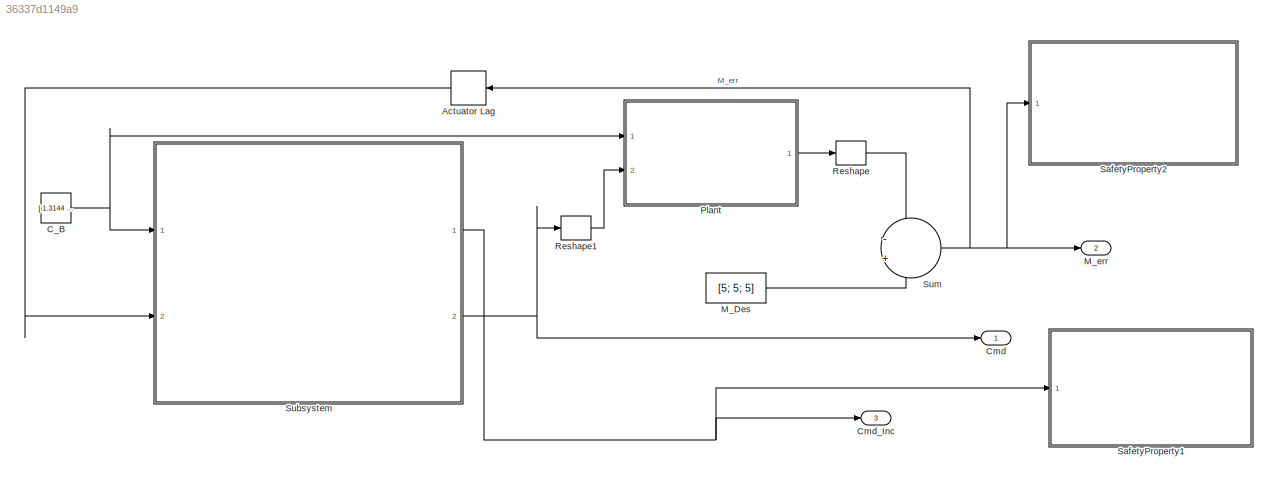
MODEL slx_36337d1149a9
KIND model
CONFIG AbsTol = auto
CONFIG FixedStep = auto
CONFIG MaxStep = auto
CONFIG MinStep = auto
CONFIG RelTol = 1e-3
CONFIG SampleTimeConstraint = Unconstrained
CONFIG Solver = ode45
CONFIG SolverMode = Auto
CONFIG SolverName = ode45
CONFIG StartTime = 0.0
CONFIG StopTime = 10.0
BLOCK [Delay]  Actuator Lag
  DelayLength = 1
  InitialCondition = [0;0;0]'
  InputPortMap = u0
  Ports = [1, 1]
  SampleTime = 0.1
BLOCK [Constant] C_B
  Value = [ 1.3144   -1.3144         0    0.5155\n;         0         0   -3.9998         0;\n    0.2782   -0.2782         0   -1.6581]
  VectorParams1D = off
BLOCK [Outport] Cmd
  IconDisplay = Port number
BLOCK [Outport] Cmd_Inc
  IconDisplay = Port number
  Port = 3
BLOCK [Constant] M_Des
  Value = [5; 5; 5]
BLOCK [Outport] M_err
  IconDisplay = Port number
  Port = 2
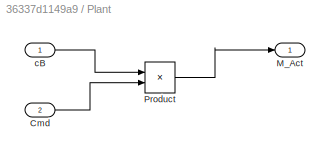
BLOCK [SubSystem] Plant
  Ports = [2, 1]
  RequestExecContextInheritance = off
BLOCK [Inport] Plant/Cmd
  IconDisplay = Port number
  Port = 2
BLOCK [Outport] Plant/M_Act
  IconDisplay = Port number
BLOCK [Product] Plant/Product
  InputSameDT = off
  Multiplication = Matrix(*)
  OutDataTypeStr = Inherit: Inherit via internal rule
  Ports = [2, 1]
  RndMeth = Floor
  SaturateOnIntegerOverflow = off
BLOCK [Inport] Plant/cB
  IconDisplay = Port number
BLOCK [Reshape] Reshape
  Ports = [1, 1]
BLOCK [Reshape] Reshape1
  OutputDimensionality = Customize
  OutputDimensions = [4,1]
  Ports = [1, 1]
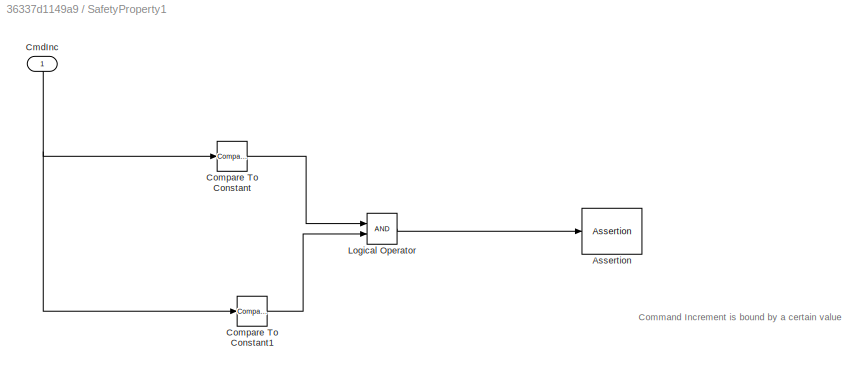
BLOCK [SubSystem] SafetyProperty1
  Ports = [1]
  RequestExecContextInheritance = off
  TreatAsAtomicUnit = on
BLOCK [Assertion] SafetyProperty1/Assertion
BLOCK [Inport] SafetyProperty1/CmdInc 
  IconDisplay = Port number
BLOCK [Reference] SafetyProperty1/Compare To Constant  REF=simulink/Logic and Bit
Operations/Compare
To Constant
  OutDataTypeStr = boolean
  Ports = [1, 1]
  SourceBlock = simulink/Logic and Bit\nOperations/Compare\nTo Constant
  SourceType = Compare To Constant
  ZeroCross = on
  const = -0.1
  relop = >=
BLOCK [Reference] SafetyProperty1/Compare To Constant1  REF=simulink/Logic and Bit
Operations/Compare
To Constant
  OutDataTypeStr = boolean
  Ports = [1, 1]
  SourceBlock = simulink/Logic and Bit\nOperations/Compare\nTo Constant
  SourceType = Compare To Constant
  ZeroCross = on
  const = 0.1
  relop = <=
BLOCK [Logic] SafetyProperty1/Logical Operator
  AllPortsSameDT = off
  OutDataTypeStr = boolean
  Ports = [2, 1]
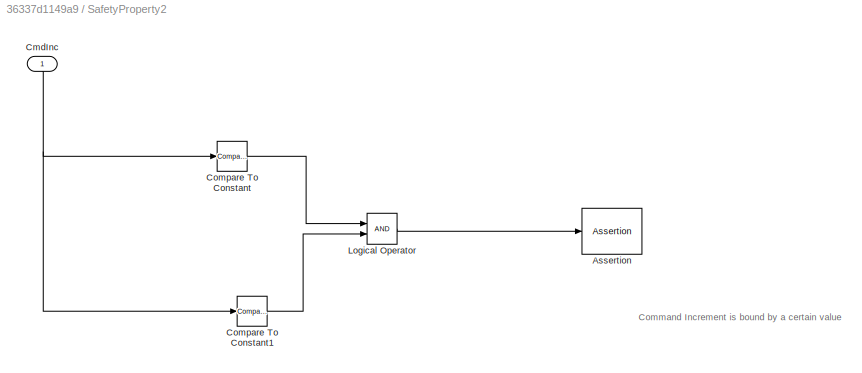
BLOCK [SubSystem] SafetyProperty2
  Ports = [1]
  RequestExecContextInheritance = off
  TreatAsAtomicUnit = on
BLOCK [Assertion] SafetyProperty2/Assertion
BLOCK [Inport] SafetyProperty2/CmdInc 
  IconDisplay = Port number
BLOCK [Reference] SafetyProperty2/Compare To Constant  REF=simulink/Logic and Bit
Operations/Compare
To Constant
  OutDataTypeStr = boolean
  Ports = [1, 1]
  SourceBlock = simulink/Logic and Bit\nOperations/Compare\nTo Constant
  SourceType = Compare To Constant
  ZeroCross = on
  const = -0.1
  relop = >=
BLOCK [Reference] SafetyProperty2/Compare To Constant1  REF=simulink/Logic and Bit
Operations/Compare
To Constant
  OutDataTypeStr = boolean
  Ports = [1, 1]
  SourceBlock = simulink/Logic and Bit\nOperations/Compare\nTo Constant
  SourceType = Compare To Constant
  ZeroCross = on
  const = 0.1
  relop = <=
BLOCK [Logic] SafetyProperty2/Logical Operator
  AllPortsSameDT = off
  OutDataTypeStr = boolean
  Ports = [2, 1]
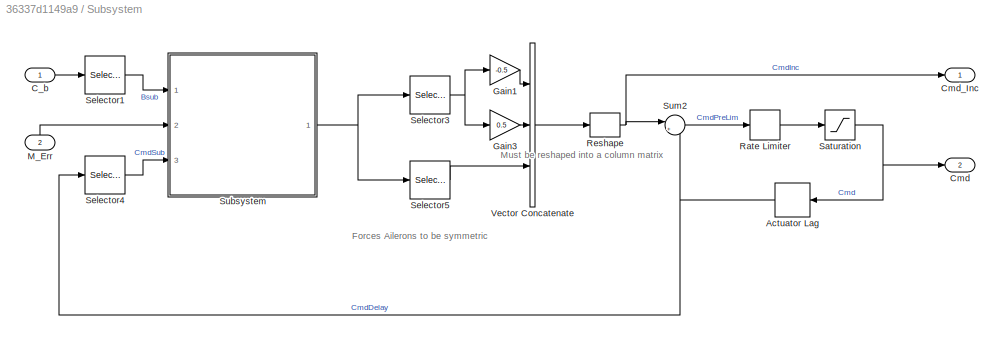
BLOCK [SubSystem] Subsystem
  Ports = [2, 2]
  RequestExecContextInheritance = off
BLOCK [Delay] Subsystem/ Actuator Lag
  DelayLength = 1
  InitialCondition = [0 0 0 0]'
  InputPortMap = u0
  Ports = [1, 1]
BLOCK [Inport] Subsystem/C_b
  IconDisplay = Port number
BLOCK [Outport] Subsystem/Cmd
  IconDisplay = Port number
  Port = 2
BLOCK [Outport] Subsystem/Cmd_Inc
  IconDisplay = Port number
BLOCK [Gain] Subsystem/Gain1
  Gain = -0.5
  OutDataTypeStr = Inherit: Inherit via internal rule
  ParamDataTypeStr = Inherit: Inherit via internal rule
  SaturateOnIntegerOverflow = off
BLOCK [Gain] Subsystem/Gain3
  Gain = 0.5
  OutDataTypeStr = Inherit: Inherit via internal rule
  ParamDataTypeStr = Inherit: Inherit via internal rule
  SaturateOnIntegerOverflow = off
BLOCK [Inport] Subsystem/M_Err
  IconDisplay = Port number
  Port = 2
BLOCK [RateLimiter] Subsystem/Rate Limiter
  FallingSlewLimit = -0.1
  RisingSlewLimit = 0.1
  SampleTimeMode = inherited
BLOCK [Reshape] Subsystem/Reshape
  OutputDimensionality = Column vector (2-D)
  Ports = [1, 1]
BLOCK [Saturate] Subsystem/Saturation
  InputPortMap = u0
  LowerLimit = -30
  Ports = [1, 1]
  UpperLimit = 30
BLOCK [Selector] Subsystem/Selector1
  IndexOptions = Select all,Index vector (dialog)
  Indices = [1 3],[2:4]
  InputPortWidth = 3
  NumberOfDimensions = 2
  OutputSizes = 1,1
  Ports = [1, 1]
BLOCK [Selector] Subsystem/Selector3
  InputPortWidth = 3
  Ports = [1, 1]
BLOCK [Selector] Subsystem/Selector4
  Indices = 2:4
  InputPortWidth = 4
  Ports = [1, 1]
BLOCK [Selector] Subsystem/Selector5
  Indices = 2:3
  InputPortWidth = 3
  Ports = [1, 1]
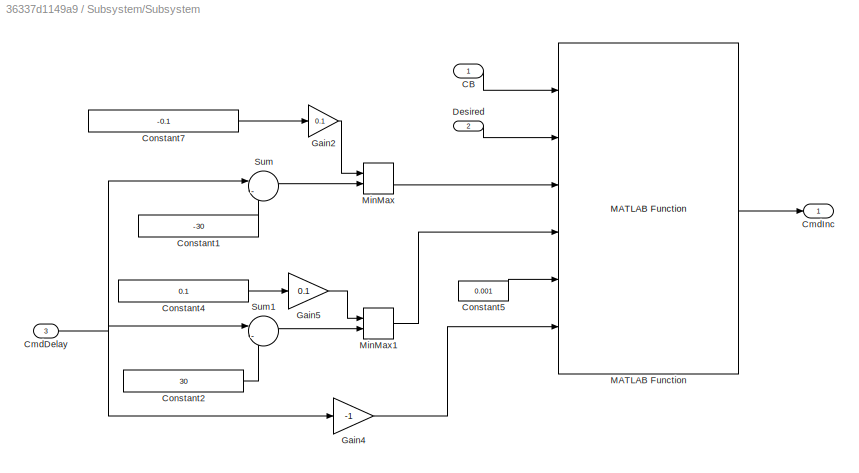
BLOCK [SubSystem] Subsystem/Subsystem
  Ports = [3, 1]
  RequestExecContextInheritance = off
BLOCK [Inport] Subsystem/Subsystem/CB
  IconDisplay = Port number
BLOCK [Inport] Subsystem/Subsystem/CmdDelay
  IconDisplay = Port number
  Port = 3
BLOCK [Outport] Subsystem/Subsystem/CmdInc
  IconDisplay = Port number
BLOCK [Constant] Subsystem/Subsystem/Constant1
  Value = -30
BLOCK [Constant] Subsystem/Subsystem/Constant2
  Value = 30
BLOCK [Constant] Subsystem/Subsystem/Constant4
  Value = 0.1
BLOCK [Constant] Subsystem/Subsystem/Constant5
  Value = 0.001
BLOCK [Constant] Subsystem/Subsystem/Constant7
  Value = -0.1
BLOCK [Inport] Subsystem/Subsystem/Desired
  IconDisplay = Port number
  Port = 2
BLOCK [Gain] Subsystem/Subsystem/Gain2
  Gain = 0.1
  OutDataTypeStr = Inherit: Inherit via internal rule
  ParamDataTypeStr = Inherit: Inherit via internal rule
  SaturateOnIntegerOverflow = off
BLOCK [Gain] Subsystem/Subsystem/Gain4
  Gain = -1
  OutDataTypeStr = Inherit: Inherit via internal rule
  ParamDataTypeStr = Inherit: Inherit via internal rule
  SaturateOnIntegerOverflow = off
BLOCK [Gain] Subsystem/Subsystem/Gain5
  Gain = 0.1
  OutDataTypeStr = Inherit: Inherit via internal rule
  ParamDataTypeStr = Inherit: Inherit via internal rule
  SaturateOnIntegerOverflow = off
BLOCK [Reference] Subsystem/Subsystem/MATLAB Function  REF=ControlAllocator/Control Allocator/L1_OCA/MATLAB Function
  Ports = [6, 1]
  SourceBlock = ControlAllocator/Control Allocator/L1_OCA/MATLAB Function
  SourceType = SubSystem
BLOCK [MinMax] Subsystem/Subsystem/MinMax
  Function = max
  InputSameDT = off
  Inputs = 2
  Ports = [2, 1]
  SaturateOnIntegerOverflow = off
BLOCK [MinMax] Subsystem/Subsystem/MinMax1
  InputSameDT = off
  Inputs = 2
  Ports = [2, 1]
  SaturateOnIntegerOverflow = off
BLOCK [Sum] Subsystem/Subsystem/Sum
  IconShape = round
  InputSameDT = off
  Inputs = |-+
  OutDataTypeStr = Inherit: Inherit via internal rule
  Ports = [2, 1]
  SaturateOnIntegerOverflow = off
BLOCK [Sum] Subsystem/Subsystem/Sum1
  IconShape = round
  InputSameDT = off
  Inputs = |-+
  OutDataTypeStr = Inherit: Inherit via internal rule
  Ports = [2, 1]
  SaturateOnIntegerOverflow = off
BLOCK [Sum] Subsystem/Sum2
  IconShape = round
  InputSameDT = off
  Inputs = |++
  OutDataTypeStr = Inherit: Inherit via internal rule
  Ports = [2, 1]
  SaturateOnIntegerOverflow = off
BLOCK [Concatenate] Subsystem/Vector Concatenate
  NumInputs = 3
  Ports = [3, 1]
BLOCK [Sum] Sum
  IconShape = round
  InputSameDT = off
  Inputs = -+
  OutDataTypeStr = Inherit: Inherit via internal rule
  Ports = [2, 1]
  SaturateOnIntegerOverflow = off
ANNOTATION SafetyProperty1: Command Increment is bound by a certain value
ANNOTATION SafetyProperty2: Command Increment is bound by a certain value
ANNOTATION Subsystem: Forces Ailerons to be symmetric
ANNOTATION Subsystem: Must be reshaped into a column matrix
LINE  Actuator Lag:1 -> Subsystem:2
NET C_B:1 -> Plant:1, Subsystem:1
LINE M_Des:1 -> Sum:2
LINE Plant/Cmd:1 -> Plant/Product:2
LINE Plant/Product:1 -> Plant/M_Act:1
LINE Plant/cB:1 -> Plant/Product:1
LINE Plant:1 -> Reshape:1
LINE Reshape1:1 -> Plant:2
LINE Reshape:1 -> Sum:1
NET SafetyProperty1/CmdInc :1 -> SafetyProperty1/Compare To Constant1:1, SafetyProperty1/Compare To Constant:1
LINE SafetyProperty1/Compare To Constant1:1 -> SafetyProperty1/Logical Operator:2
LINE SafetyProperty1/Compare To Constant:1 -> SafetyProperty1/Logical Operator:1
LINE SafetyProperty1/Logical Operator:1 -> SafetyProperty1/Assertion:1
NET SafetyProperty2/CmdInc :1 -> SafetyProperty2/Compare To Constant1:1, SafetyProperty2/Compare To Constant:1
LINE SafetyProperty2/Compare To Constant1:1 -> SafetyProperty2/Logical Operator:2
LINE SafetyProperty2/Compare To Constant:1 -> SafetyProperty2/Logical Operator:1
LINE SafetyProperty2/Logical Operator:1 -> SafetyProperty2/Assertion:1
NET Subsystem/ Actuator Lag:1 -> Subsystem/Selector4:1, Subsystem/Sum2:2
LINE Subsystem/C_b:1 -> Subsystem/Selector1:1
LINE Subsystem/Gain1:1 -> Subsystem/Vector Concatenate:1
LINE Subsystem/Gain3:1 -> Subsystem/Vector Concatenate:2
LINE Subsystem/M_Err:1 -> Subsystem/Subsystem:2
LINE Subsystem/Rate Limiter:1 -> Subsystem/Saturation:1
NET Subsystem/Reshape:1 -> Subsystem/Cmd_Inc:1, Subsystem/Sum2:1
NET Subsystem/Saturation:1 -> Subsystem/ Actuator Lag:1, Subsystem/Cmd:1
LINE Subsystem/Selector1:1 -> Subsystem/Subsystem:1
NET Subsystem/Selector3:1 -> Subsystem/Gain1:1, Subsystem/Gain3:1
LINE Subsystem/Selector4:1 -> Subsystem/Subsystem:3
LINE Subsystem/Selector5:1 -> Subsystem/Vector Concatenate:3
LINE Subsystem/Subsystem/CB:1 -> Subsystem/Subsystem/MATLAB Function:1
NET Subsystem/Subsystem/CmdDelay:1 -> Subsystem/Subsystem/Gain4:1, Subsystem/Subsystem/Sum1:1, Subsystem/Subsystem/Sum:1
LINE Subsystem/Subsystem/Constant1:1 -> Subsystem/Subsystem/Sum:2
LINE Subsystem/Subsystem/Constant2:1 -> Subsystem/Subsystem/Sum1:2
LINE Subsystem/Subsystem/Constant4:1 -> Subsystem/Subsystem/Gain5:1
LINE Subsystem/Subsystem/Constant5:1 -> Subsystem/Subsystem/MATLAB Function:5
LINE Subsystem/Subsystem/Constant7:1 -> Subsystem/Subsystem/Gain2:1
LINE Subsystem/Subsystem/Desired:1 -> Subsystem/Subsystem/MATLAB Function:2
LINE Subsystem/Subsystem/Gain2:1 -> Subsystem/Subsystem/MinMax:1
LINE Subsystem/Subsystem/Gain4:1 -> Subsystem/Subsystem/MATLAB Function:6
LINE Subsystem/Subsystem/Gain5:1 -> Subsystem/Subsystem/MinMax1:1
LINE Subsystem/Subsystem/MATLAB Function:1 -> Subsystem/Subsystem/CmdInc:1
LINE Subsystem/Subsystem/MinMax1:1 -> Subsystem/Subsystem/MATLAB Function:4
LINE Subsystem/Subsystem/MinMax:1 -> Subsystem/Subsystem/MATLAB Function:3
LINE Subsystem/Subsystem/Sum1:1 -> Subsystem/Subsystem/MinMax1:2
LINE Subsystem/Subsystem/Sum:1 -> Subsystem/Subsystem/MinMax:2
NET Subsystem/Subsystem:1 -> Subsystem/Selector3:1, Subsystem/Selector5:1
LINE Subsystem/Sum2:1 -> Subsystem/Rate Limiter:1
LINE Subsystem/Vector Concatenate:1 -> Subsystem/Reshape:1
NET Subsystem:1 -> Cmd_Inc:1, SafetyProperty1:1
NET Subsystem:2 -> Cmd:1, Reshape1:1
NET Sum:1 ->  Actuator Lag:1, M_err:1, SafetyProperty2:1
note: NET lines group one-source signal fan-out (src -> all destinations, sorted); 1:1 wires keep LINE
